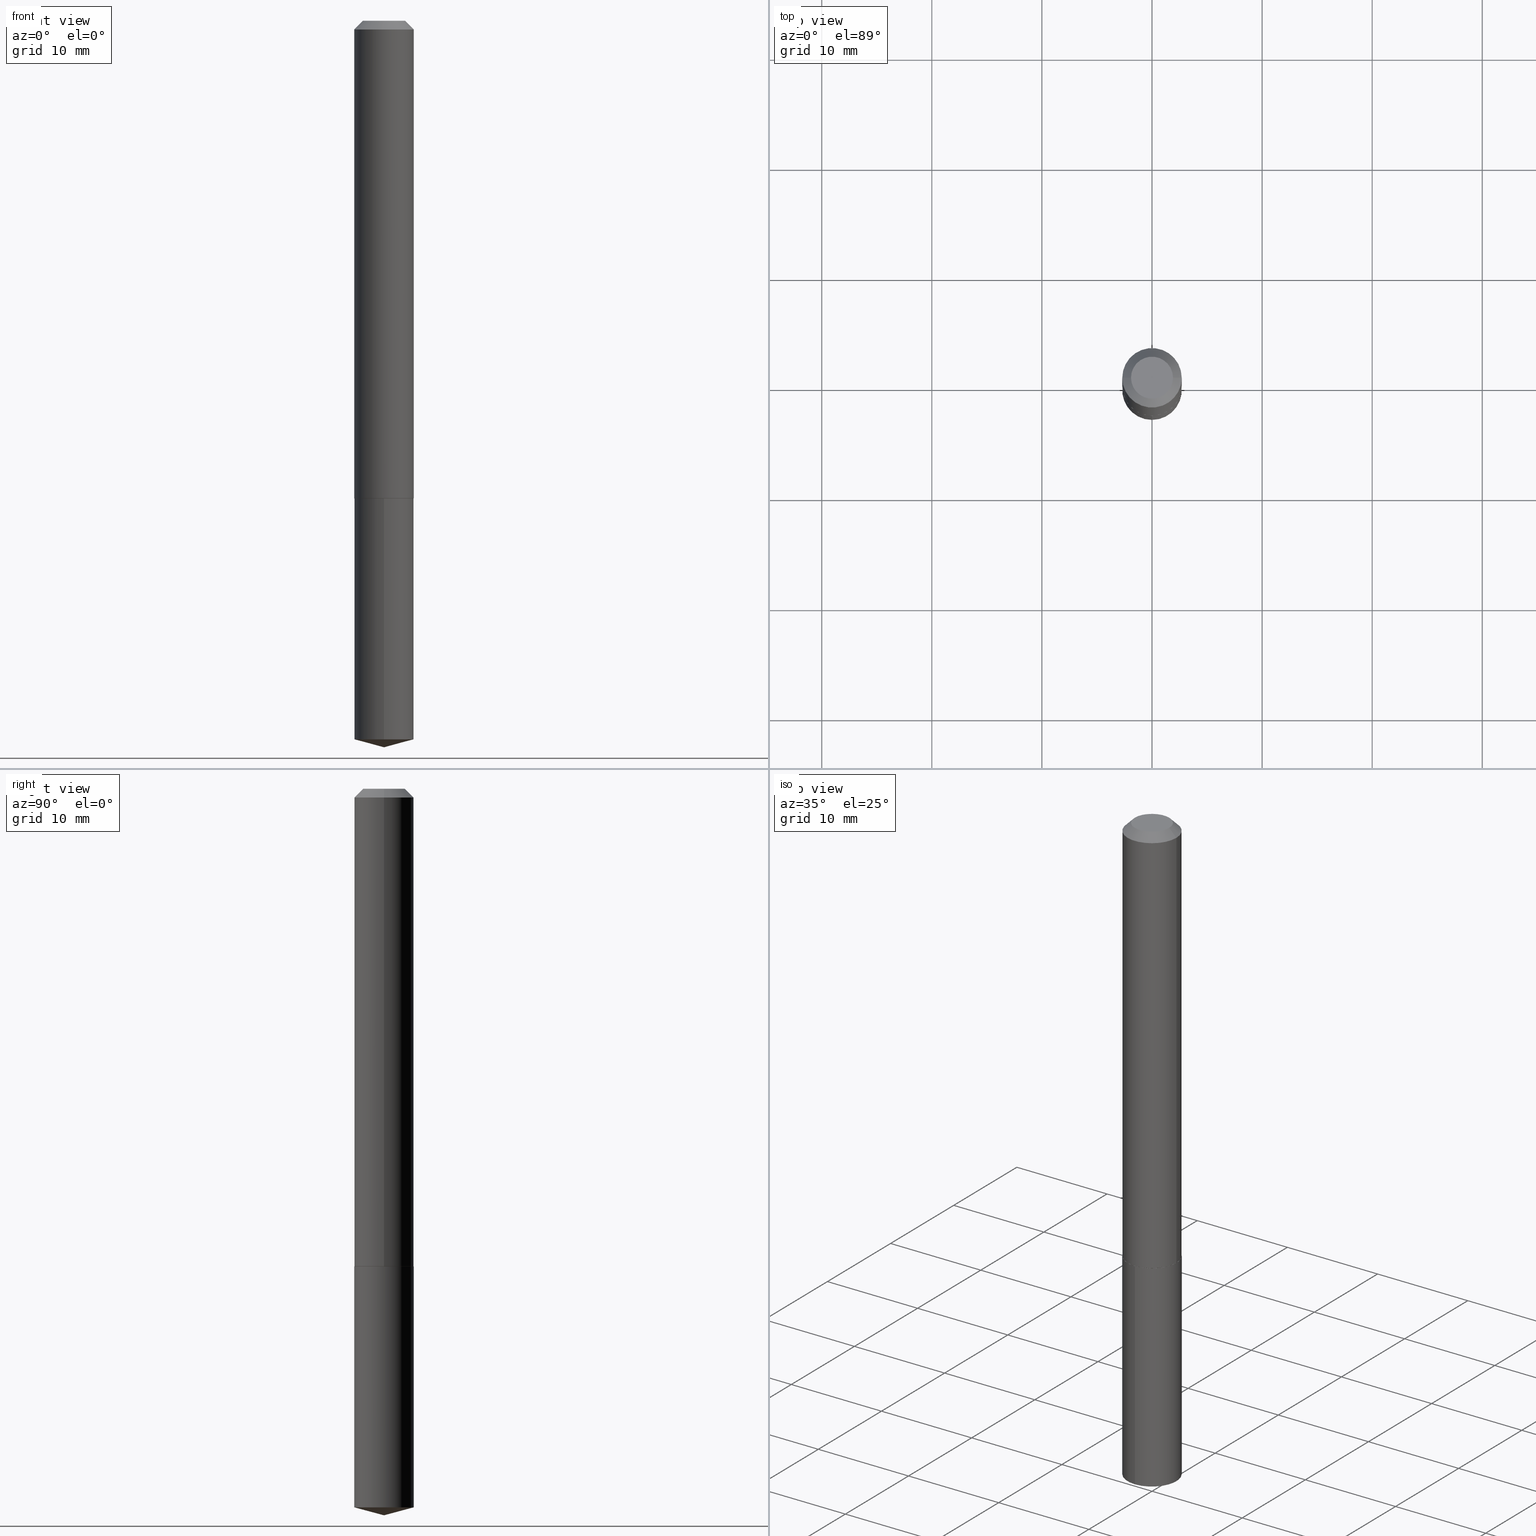
[diagram: canonical four-view strip — front | top / right | iso, engineering-drawing reading convention]
A machine part, canonical four-view strip (front | top / right | iso — engineering-drawing reading convention). The complete STEP part file that produces these views, byte-faithful:
ISO-10303-21;
HEADER;
FILE_DESCRIPTION (( 'STEP AP203' ),
    '1' );
FILE_NAME ('63059.STEP',
    '2024-04-23T09:01:29',
    ( '' ),
    ( '' ),
    'SwSTEP 2.0',
    'SolidWorks 2023',
    '' );
FILE_SCHEMA (( 'CONFIG_CONTROL_DESIGN' ));
ENDSEC;

DATA;
#1 = DIRECTION ( 'NONE',  ( 1.000000000000000000, -6.982962677686265922E-15, 0.000000000000000000 ) ) ;
#2 = EDGE_CURVE ( 'NONE', #16, #351, #170, .T. ) ;
#3 = FACE_OUTER_BOUND ( 'NONE', #347, .T. ) ;
#4 = LOCAL_TIME ( 5, 1, 29.00000000000000000, #140 ) ;
#5 = DIRECTION ( 'NONE',  ( -6.982962677686265922E-15, -1.000000000000000000, 2.569941668545873170E-15 ) ) ;
#6 = CARTESIAN_POINT ( 'NONE',  ( 4.178328002247923804E-29, -5.965545015547398653E-15, -1.708599999999999897 ) ) ;
#7 = ORIENTED_EDGE ( 'NONE', *, *, #151, .F. ) ;
#8 = DIRECTION ( 'NONE',  ( -2.445479163494150825E-29, 3.491466506587135831E-15, 1.000000000000000000 ) ) ;
#9 = EDGE_LOOP ( 'NONE', ( #227, #366, #235, #73 ) ) ;
#10 = AXIS2_PLACEMENT_3D ( 'NONE', #200, #142, #106 ) ;
#11 = PERSON_AND_ORGANIZATION ( #259, #237 ) ;
#12 = ORIENTED_EDGE ( 'NONE', *, *, #359, .F. ) ;
#13 = ORIENTED_EDGE ( 'NONE', *, *, #359, .T. ) ;
#14 = APPROVAL ( #138, 'UNSPECIFIED' ) ;
#15 = PERSON_AND_ORGANIZATION_ROLE ( 'design_supplier' ) ;
#16 = VERTEX_POINT ( 'NONE', #117 ) ;
#17 = AXIS2_PLACEMENT_3D ( 'NONE', #357, #390, #269 ) ;
#18 = PERSON_AND_ORGANIZATION ( #259, #237 ) ;
#19 = VECTOR ( 'NONE', #370, 39.37007874015748143 ) ;
#20 = ORIENTED_EDGE ( 'NONE', *, *, #115, .T. ) ;
#21 = ORIENTED_EDGE ( 'NONE', *, *, #246, .F. ) ;
#22 = ADVANCED_FACE ( 'NONE', ( #239 ), #128, .T. ) ;
#23 = EDGE_CURVE ( 'NONE', #351, #16, #242, .T. ) ;
#24 = DIRECTION ( 'NONE',  ( -6.982962677686266711E-15, -1.000000000000000000, 3.510303681827621500E-15 ) ) ;
#25 = AXIS2_PLACEMENT_3D ( 'NONE', #271, #299, #245 ) ;
#26 = DIRECTION ( 'NONE',  ( 1.000000000000000000, -6.982962677686262766E-15, 0.000000000000000000 ) ) ;
#27 = VECTOR ( 'NONE', #307, 39.37007874015748143 ) ;
#28 = CARTESIAN_POINT ( 'NONE',  ( 0.1058000000000002688, -6.704342466846608152E-15, -1.708600000000000119 ) ) ;
#29 = APPROVAL_STATUS ( 'not_yet_approved' ) ;
#30 = DIRECTION ( 'NONE',  ( -2.445479163494150825E-29, 3.491466506587135831E-15, 1.000000000000000000 ) ) ;
#31 = CARTESIAN_POINT ( 'NONE',  ( -8.992439186225414658E-28, 1.283870593698494729E-13, 36.77167874015748339 ) ) ;
#32 = CC_DESIGN_APPROVAL ( #291, ( #263 ) ) ;
#33 = DIRECTION ( 'NONE',  ( 6.863315791527694259E-15, 0.9659258262890694224, 0.2588190451025160765 ) ) ;
#34 = FACE_OUTER_BOUND ( 'NONE', #344, .T. ) ;
#35 = FACE_OUTER_BOUND ( 'NONE', #169, .T. ) ;
#36 = CARTESIAN_POINT ( 'NONE',  ( 4.178328002247923804E-29, -5.965545015547398653E-15, -1.708599999999999897 ) ) ;
#37 = EDGE_CURVE ( 'NONE', #266, #174, #183, .T. ) ;
#38 = CARTESIAN_POINT ( 'NONE',  ( 7.553069281130489560E-16, 0.1062999999999909850, -2.569917000844572197 ) ) ;
#39 =( NAMED_UNIT ( * ) SI_UNIT ( $, .STERADIAN. ) SOLID_ANGLE_UNIT ( ) );
#40 = ORIENTED_EDGE ( 'NONE', *, *, #246, .T. ) ;
#41 = CONICAL_SURFACE ( 'NONE', #368, 0.1063000000000002415, 0.7853981633972434429 ) ;
#42 = AXIS2_PLACEMENT_3D ( 'NONE', #130, #281, #5 ) ;
#43 = AXIS2_PLACEMENT_3D ( 'NONE', #280, #367, #134 ) ;
#44 = DATE_AND_TIME ( #113, #4 ) ;
#45 = DIMENSIONAL_EXPONENTS ( 1.000000000000000000, 0.000000000000000000, 0.000000000000000000, 0.000000000000000000, 0.000000000000000000, 0.000000000000000000, 0.000000000000000000 ) ;
#46 = ORIENTED_EDGE ( 'NONE', *, *, #319, .F. ) ;
#47 = COORDINATED_UNIVERSAL_TIME_OFFSET ( 5, 0, .BEHIND. ) ;
#48 = EDGE_LOOP ( 'NONE', ( #228, #310, #13, #316 ) ) ;
#49 = PERSON_AND_ORGANIZATION ( #259, #237 ) ;
#50 = VERTEX_POINT ( 'NONE', #125 ) ;
#51 = CLOSED_SHELL ( 'NONE', ( #213, #272, #59, #103, #342 ) ) ;
#52 =( LENGTH_UNIT ( ) NAMED_UNIT ( * ) SI_UNIT ( $, .METRE. ) );
#53 = AXIS2_PLACEMENT_3D ( 'NONE', #214, #155, #387 ) ;
#54 = EDGE_LOOP ( 'NONE', ( #141, #118, #375, #374 ) ) ;
#55 = CARTESIAN_POINT ( 'NONE',  ( 0.000000000000000000, 0.000000000000000000, 0.000000000000000000 ) ) ;
#56 = CARTESIAN_POINT ( 'NONE',  ( 7.642090019328599159E-31, -1.091087918388489774E-16, -0.03125000000000019429 ) ) ;
#57 = CARTESIAN_POINT ( 'NONE',  ( 6.284660780976598715E-29, -8.972804475550304007E-15, -2.569917000844571753 ) ) ;
#58 = AXIS2_PLACEMENT_3D ( 'NONE', #6, #8, #253 ) ;
#59 = ADVANCED_FACE ( 'NONE', ( #323 ), #64, .T. ) ;
#60 = LINE ( 'NONE', #185, #377 ) ;
#61 = APPLICATION_CONTEXT ( 'configuration controlled 3d designs of mechanical parts and assemblies' ) ;
#62 = DIRECTION ( 'NONE',  ( 1.000000000000000000, -6.982962677686267499E-15, 0.000000000000000000 ) ) ;
#63 = CARTESIAN_POINT ( 'NONE',  ( 0.1063000000000002415, -6.706088207516028077E-15, -1.708099999999999952 ) ) ;
#64 = CONICAL_SURFACE ( 'NONE', #282, 146.9311341562558084, 1.308996938995748538 ) ;
#65 = AXIS2_PLACEMENT_3D ( 'NONE', #100, #304, #163 ) ;
#66 = CARTESIAN_POINT ( 'NONE',  ( 7.553069281130281498E-16, 0.1062999999999940520, -1.708600000000000119 ) ) ;
#67 = DIRECTION ( 'NONE',  ( 0.7071067811864026886, -2.468850131080739687E-15, 0.7071067811866923458 ) ) ;
#68 = FACE_OUTER_BOUND ( 'NONE', #177, .T. ) ;
#69 = LOCAL_TIME ( 5, 1, 29.00000000000000000, #175 ) ;
#70 = PLANE ( 'NONE',  #43 ) ;
#71 = ADVANCED_FACE ( 'NONE', ( #88 ), #41, .T. ) ;
#72 =( NAMED_UNIT ( * ) PLANE_ANGLE_UNIT ( ) SI_UNIT ( $, .RADIAN. ) );
#73 = ORIENTED_EDGE ( 'NONE', *, *, #89, .F. ) ;
#74 = AXIS2_PLACEMENT_3D ( 'NONE', #152, #184, #26 ) ;
#75 = LOCAL_TIME ( 5, 1, 29.00000000000000000, #47 ) ;
#76 = EDGE_LOOP ( 'NONE', ( #149, #114, #79, #143 ) ) ;
#77 = PRODUCT ( '63059', '63059', '', ( #315 ) ) ;
#78 = PERSON_AND_ORGANIZATION ( #259, #237 ) ;
#79 = ORIENTED_EDGE ( 'NONE', *, *, #371, .F. ) ;
#80 = DATE_AND_TIME ( #350, #224 ) ;
#81 = ORIENTED_EDGE ( 'NONE', *, *, #189, .F. ) ;
#82 = ADVANCED_FACE ( 'NONE', ( #295 ), #229, .T. ) ;
#83 = AXIS2_PLACEMENT_3D ( 'NONE', #57, #274, #95 ) ;
#84 = VECTOR ( 'NONE', #191, 39.37007874015748854 ) ;
#85 = ORIENTED_EDGE ( 'NONE', *, *, #270, .F. ) ;
#86 = DIRECTION ( 'NONE',  ( -2.445468806185136597E-29, 3.491481338843145583E-15, 1.000000000000000000 ) ) ;
#87 = CC_DESIGN_DATE_AND_TIME_ASSIGNMENT ( #171, #317, ( #258 ) ) ;
#88 = FACE_OUTER_BOUND ( 'NONE', #318, .T. ) ;
#89 = EDGE_CURVE ( 'NONE', #174, #314, #249, .T. ) ;
#90 = APPROVAL_DATE_TIME ( #326, #291 ) ;
#91 = AXIS2_PLACEMENT_3D ( 'NONE', #55, #86, #294 ) ;
#92 = DIRECTION ( 'NONE',  ( -0.7071067811865453523, 2.468850131082234184E-15, -0.7071067811865496822 ) ) ;
#93 = AXIS2_PLACEMENT_3D ( 'NONE', #220, #216, #188 ) ;
#94 = CARTESIAN_POINT ( 'NONE',  ( 4.178328002247923804E-29, -5.965545015547398653E-15, -1.708599999999999897 ) ) ;
#95 = DIRECTION ( 'NONE',  ( -6.982962677686265922E-15, -1.000000000000000000, 5.139883337091746339E-15 ) ) ;
#96 = EDGE_CURVE ( 'NONE', #174, #351, #267, .T. ) ;
#97 = CARTESIAN_POINT ( 'NONE',  ( -5.839929314523221596E-48, 8.337871319499147471E-34, 2.388061258337352918E-19 ) ) ;
#98 = AXIS2_PLACEMENT_3D ( 'NONE', #97, #218, #334 ) ;
#99 = ADVANCED_BREP_SHAPE_REPRESENTATION ( '63059', ( #308, #202, #10 ), #306 ) ;
#100 = CARTESIAN_POINT ( 'NONE',  ( 4.178328002247923804E-29, -5.965545015547398653E-15, -1.708599999999999897 ) ) ;
#101 = ADVANCED_FACE ( 'NONE', ( #327 ), #154, .T. ) ;
#102 = DIRECTION ( 'NONE',  ( -6.982962677686266711E-15, -1.000000000000000000, 3.510303681827621500E-15 ) ) ;
#103 = ADVANCED_FACE ( 'NONE', ( #383 ), #329, .T. ) ;
#104 = CARTESIAN_POINT ( 'NONE',  ( 6.354333058423199461E-29, -9.072226570716013671E-15, -2.598399999999999821 ) ) ;
#105 = CONICAL_SURFACE ( 'NONE', #93, 0.1063000000000000056, 0.7853981633974452814 ) ;
#106 = DIRECTION ( 'NONE',  ( 1.000000000000000000, 0.000000000000000000, 0.000000000000000000 ) ) ;
#107 = ORIENTED_EDGE ( 'NONE', *, *, #176, .T. ) ;
#108 = PERSON_AND_ORGANIZATION ( #259, #237 ) ;
#109 = ORIENTED_EDGE ( 'NONE', *, *, #110, .F. ) ;
#110 = EDGE_CURVE ( 'NONE', #293, #203, #206, .T. ) ;
#111 = ORIENTED_EDGE ( 'NONE', *, *, #23, .T. ) ;
#112 = AXIS2_PLACEMENT_3D ( 'NONE', #247, #277, #363 ) ;
#113 = CALENDAR_DATE ( 2024, 23, 4 ) ;
#114 = ORIENTED_EDGE ( 'NONE', *, *, #241, .T. ) ;
#115 = EDGE_CURVE ( 'NONE', #50, #351, #120, .T. ) ;
#116 = PERSON_AND_ORGANIZATION_ROLE ( 'creator' ) ;
#117 = CARTESIAN_POINT ( 'NONE',  ( 0.1063000000000000056, -8.513977244768991407E-16, -0.03125000000000019429 ) ) ;
#118 = ORIENTED_EDGE ( 'NONE', *, *, #181, .T. ) ;
#119 = CIRCLE ( 'NONE', #53, 0.07505000000000000560 ) ;
#120 = LINE ( 'NONE', #331, #136 ) ;
#121 = APPROVAL_ROLE ( '' ) ;
#122 = DIRECTION ( 'NONE',  ( -1.000000000000000000, 6.982962677686267499E-15, 0.000000000000000000 ) ) ;
#123 = EDGE_CURVE ( 'NONE', #203, #293, #322, .T. ) ;
#124 = CARTESIAN_POINT ( 'NONE',  ( 7.553069281130493504E-16, 0.1062999999999940243, -1.708600000000000119 ) ) ;
#125 = CARTESIAN_POINT ( 'NONE',  ( -0.07505000000000001947, 5.786257448797778683E-16, 2.388061258298797245E-19 ) ) ;
#126 = VECTOR ( 'NONE', #67, 39.37007874015748143 ) ;
#127 = ADVANCED_FACE ( 'NONE', ( #324 ), #164, .T. ) ;
#128 = CYLINDRICAL_SURFACE ( 'NONE', #91, 0.1063000000000001166 ) ;
#129 = CYLINDRICAL_SURFACE ( 'NONE', #42, 0.1063000000000000056 ) ;
#130 = CARTESIAN_POINT ( 'NONE',  ( 4.178328002247923804E-29, -5.965545015547398653E-15, -1.708599999999999897 ) ) ;
#131 = CIRCLE ( 'NONE', #268, 0.1063000000000000056 ) ;
#132 = PLANE ( 'NONE',  #112 ) ;
#133 = APPLICATION_CONTEXT ( 'configuration controlled 3d designs of mechanical parts and assemblies' ) ;
#134 = DIRECTION ( 'NONE',  ( 1.000000000000000000, -6.982962677686265922E-15, 4.876176775795935793E-29 ) ) ;
#135 = CARTESIAN_POINT ( 'NONE',  ( 0.1063000000000002415, -6.706088207516028077E-15, -1.708099999999999952 ) ) ;
#136 = VECTOR ( 'NONE', #92, 39.37007874015748143 ) ;
#137 = CIRCLE ( 'NONE', #98, 0.07505000000000000560 ) ;
#138 = APPROVAL_STATUS ( 'not_yet_approved' ) ;
#139 = EDGE_LOOP ( 'NONE', ( #285, #264, #107, #262 ) ) ;
#140 = COORDINATED_UNIVERSAL_TIME_OFFSET ( 5, 0, .BEHIND. ) ;
#141 = ORIENTED_EDGE ( 'NONE', *, *, #341, .F. ) ;
#142 = DIRECTION ( 'NONE',  ( 0.000000000000000000, 0.000000000000000000, 1.000000000000000000 ) ) ;
#143 = ORIENTED_EDGE ( 'NONE', *, *, #176, .F. ) ;
#144 = CC_DESIGN_PERSON_AND_ORGANIZATION_ASSIGNMENT ( #78, #197, ( #77 ) ) ;
#145 = CC_DESIGN_APPROVAL ( #14, ( #328 ) ) ;
#146 = APPROVAL_ROLE ( '' ) ;
#147 = VERTEX_POINT ( 'NONE', #28 ) ;
#148 = DIRECTION ( 'NONE',  ( -6.982962677686265922E-15, -1.000000000000000000, 2.569941668545873170E-15 ) ) ;
#149 = ORIENTED_EDGE ( 'NONE', *, *, #110, .T. ) ;
#150 = DATE_AND_TIME ( #157, #69 ) ;
#151 = EDGE_CURVE ( 'NONE', #50, #372, #119, .T. ) ;
#152 = CARTESIAN_POINT ( 'NONE',  ( 4.177105267844832123E-29, -5.963799274877977150E-15, -1.708099999999999952 ) ) ;
#153 = APPROVAL_PERSON_ORGANIZATION ( #18, #275, #146 ) ;
#154 = CYLINDRICAL_SURFACE ( 'NONE', #17, 0.1063000000000001166 ) ;
#155 = DIRECTION ( 'NONE',  ( -2.445468806185136597E-29, 3.491481338843145583E-15, 1.000000000000000000 ) ) ;
#156 = LINE ( 'NONE', #273, #19 ) ;
#157 = CALENDAR_DATE ( 2024, 23, 4 ) ;
#158 = AXIS2_PLACEMENT_3D ( 'NONE', #287, #380, #382 ) ;
#159 = CARTESIAN_POINT ( 'NONE',  ( -0.1063000000000001166, 7.553069281129873262E-16, -5.228828000940970663E-30 ) ) ;
#160 = VECTOR ( 'NONE', #276, 39.37007874015748143 ) ;
#161 = CARTESIAN_POINT ( 'NONE',  ( 4.178328002247924925E-29, -5.965545015547399442E-15, -1.708600000000000119 ) ) ;
#162 = FACE_OUTER_BOUND ( 'NONE', #76, .T. ) ;
#163 = DIRECTION ( 'NONE',  ( 6.982962677686265922E-15, 1.000000000000000000, -3.491466506587135831E-15 ) ) ;
#164 = CONICAL_SURFACE ( 'NONE', #296, 0.1063000000000000056, 0.7853981633974452814 ) ;
#165 = CARTESIAN_POINT ( 'NONE',  ( -8.992439186225414658E-28, 1.283870593698494729E-13, 36.77167874015748339 ) ) ;
#166 = FACE_OUTER_BOUND ( 'NONE', #54, .T. ) ;
#167 = VERTEX_POINT ( 'NONE', #124 ) ;
#168 = APPROVAL_STATUS ( 'not_yet_approved' ) ;
#169 = EDGE_LOOP ( 'NONE', ( #321, #312 ) ) ;
#170 = CIRCLE ( 'NONE', #158, 0.1063000000000000056 ) ;
#171 = DATE_AND_TIME ( #226, #75 ) ;
#172 = EDGE_LOOP ( 'NONE', ( #205, #40, #233 ) ) ;
#173 = APPROVAL_DATE_TIME ( #80, #14 ) ;
#174 = VERTEX_POINT ( 'NONE', #240 ) ;
#175 = COORDINATED_UNIVERSAL_TIME_OFFSET ( 5, 0, .BEHIND. ) ;
#176 = EDGE_CURVE ( 'NONE', #293, #234, #60, .T. ) ;
#177 = EDGE_LOOP ( 'NONE', ( #21, #201, #109 ) ) ;
#178 = LOCAL_TIME ( 5, 1, 29.00000000000000000, #211 ) ;
#179 = ORIENTED_EDGE ( 'NONE', *, *, #181, .F. ) ;
#180 = DIRECTION ( 'NONE',  ( -2.445479163494150825E-29, 3.491466506587135831E-15, 1.000000000000000000 ) ) ;
#181 = EDGE_CURVE ( 'NONE', #372, #16, #156, .T. ) ;
#182 = CALENDAR_DATE ( 2024, 23, 4 ) ;
#183 = LINE ( 'NONE', #210, #305 ) ;
#184 = DIRECTION ( 'NONE',  ( -2.445468806185136597E-29, 3.491481338843145583E-15, 1.000000000000000000 ) ) ;
#185 = CARTESIAN_POINT ( 'NONE',  ( -7.422889326380084277E-16, -0.1063000000000059592, -1.708599999999999675 ) ) ;
#186 = CARTESIAN_POINT ( 'NONE',  ( 4.177105267844832123E-29, -5.963799274877977150E-15, -1.708099999999999952 ) ) ;
#187 = DIRECTION ( 'NONE',  ( -2.445468806185136597E-29, 3.491481338843145583E-15, 1.000000000000000000 ) ) ;
#188 = DIRECTION ( 'NONE',  ( -1.000000000000000000, 6.982962677686267499E-15, 0.000000000000000000 ) ) ;
#189 = EDGE_CURVE ( 'NONE', #147, #314, #309, .T. ) ;
#190 = DIRECTION ( 'NONE',  ( 1.000000000000000000, -6.982962677686262766E-15, 0.000000000000000000 ) ) ;
#191 = DIRECTION ( 'NONE',  ( -6.745023994389839133E-15, -0.9659258262890676461, 0.2588190451025227934 ) ) ;
#192 = AXIS2_PLACEMENT_3D ( 'NONE', #238, #297, #355 ) ;
#193 = CARTESIAN_POINT ( 'NONE',  ( 6.354333368777999867E-29, -9.072226570716015249E-15, -2.598399999999999821 ) ) ;
#194 = ORIENTED_EDGE ( 'NONE', *, *, #2, .F. ) ;
#195 = ADVANCED_FACE ( 'NONE', ( #34 ), #70, .F. ) ;
#196 = APPLICATION_PROTOCOL_DEFINITION ( 'international standard', 'config_control_design', 1994, #133 ) ;
#197 = PERSON_AND_ORGANIZATION_ROLE ( 'design_owner' ) ;
#198 = ORIENTED_EDGE ( 'NONE', *, *, #270, .T. ) ;
#199 = CC_DESIGN_SECURITY_CLASSIFICATION ( #263, ( #328 ) ) ;
#200 = CARTESIAN_POINT ( 'NONE',  ( 0.000000000000000000, 0.000000000000000000, 0.000000000000000000 ) ) ;
#201 = ORIENTED_EDGE ( 'NONE', *, *, #313, .T. ) ;
#202 = MANIFOLD_SOLID_BREP ( 'Body-Move/Copy2[2]', #300 ) ;
#203 = VERTEX_POINT ( 'NONE', #38 ) ;
#204 =( CONVERSION_BASED_UNIT ( 'INCH', #225 ) LENGTH_UNIT ( ) NAMED_UNIT ( #45 ) );
#205 = ORIENTED_EDGE ( 'NONE', *, *, #313, .F. ) ;
#206 = CIRCLE ( 'NONE', #83, 0.1063000000000000056 ) ;
#207 = CC_DESIGN_APPROVAL ( #275, ( #258 ) ) ;
#208 = ORIENTED_EDGE ( 'NONE', *, *, #260, .T. ) ;
#209 = CC_DESIGN_DATE_AND_TIME_ASSIGNMENT ( #150, #353, ( #263 ) ) ;
#210 = CARTESIAN_POINT ( 'NONE',  ( -0.1063000000000002415, -5.208492346764989429E-15, -1.708099999999999952 ) ) ;
#211 = COORDINATED_UNIVERSAL_TIME_OFFSET ( 5, 0, .BEHIND. ) ;
#212 = DIRECTION ( 'NONE',  ( -2.445468806185136877E-29, 3.491481338843145188E-15, 1.000000000000000000 ) ) ;
#213 = ADVANCED_FACE ( 'NONE', ( #162 ), #129, .T. ) ;
#214 = CARTESIAN_POINT ( 'NONE',  ( -5.839929314523221596E-48, 8.337871319499147471E-34, 2.388061258337352918E-19 ) ) ;
#215 = DIRECTION ( 'NONE',  ( 1.000000000000000000, -6.982962677686262766E-15, 0.000000000000000000 ) ) ;
#216 = DIRECTION ( 'NONE',  ( 2.445468806185136597E-29, -3.491481338843145583E-15, -1.000000000000000000 ) ) ;
#217 = VECTOR ( 'NONE', #33, 39.37007874015748143 ) ;
#218 = DIRECTION ( 'NONE',  ( -2.445468806185136597E-29, 3.491481338843145583E-15, 1.000000000000000000 ) ) ;
#219 = CONICAL_SURFACE ( 'NONE', #369, 146.9311341562558084, 1.308996938995748538 ) ;
#220 = CARTESIAN_POINT ( 'NONE',  ( 7.642090019328599159E-31, -1.091087918388489774E-16, -0.03125000000000019429 ) ) ;
#221 = CARTESIAN_POINT ( 'NONE',  ( 6.354297665426837752E-29, -9.072277255501250575E-15, -2.598399999999999821 ) ) ;
#222 = CARTESIAN_POINT ( 'NONE',  ( 4.177105267844832123E-29, -5.963799274877977150E-15, -1.708099999999999952 ) ) ;
#223 = PRODUCT_RELATED_PRODUCT_CATEGORY ( 'detail', '', ( #77 ) ) ;
#224 = LOCAL_TIME ( 5, 1, 29.00000000000000000, #284 ) ;
#225 = LENGTH_MEASURE_WITH_UNIT ( LENGTH_MEASURE( 0.02539999999999999897 ), #52 );
#226 = CALENDAR_DATE ( 2024, 23, 4 ) ;
#227 = ORIENTED_EDGE ( 'NONE', *, *, #37, .F. ) ;
#228 = ORIENTED_EDGE ( 'NONE', *, *, #96, .F. ) ;
#229 = CONICAL_SURFACE ( 'NONE', #25, 0.1063000000000002415, 0.7853981633972434429 ) ;
#230 = CIRCLE ( 'NONE', #389, 0.1058000000000002688 ) ;
#231 = ADVANCED_FACE ( 'NONE', ( #166 ), #105, .T. ) ;
#232 = PERSON_AND_ORGANIZATION_ROLE ( 'classification_officer' ) ;
#233 = ORIENTED_EDGE ( 'NONE', *, *, #123, .F. ) ;
#234 = VERTEX_POINT ( 'NONE', #303 ) ;
#235 = ORIENTED_EDGE ( 'NONE', *, *, #189, .T. ) ;
#236 = CC_DESIGN_PERSON_AND_ORGANIZATION_ASSIGNMENT ( #11, #116, ( #258 ) ) ;
#237 = ORGANIZATION ( 'UNSPECIFIED', 'UNSPECIFIED', '' ) ;
#238 = CARTESIAN_POINT ( 'NONE',  ( 6.284660780976598715E-29, -8.972804475550304007E-15, -2.569917000844571753 ) ) ;
#239 = FACE_OUTER_BOUND ( 'NONE', #378, .T. ) ;
#240 = CARTESIAN_POINT ( 'NONE',  ( -0.1063000000000002415, -5.208492346764989429E-15, -1.708099999999999952 ) ) ;
#241 = EDGE_CURVE ( 'NONE', #203, #167, #336, .T. ) ;
#242 = CIRCLE ( 'NONE', #345, 0.1063000000000000056 ) ;
#243 = CIRCLE ( 'NONE', #301, 0.1058000000000002688 ) ;
#244 = DIRECTION ( 'NONE',  ( -2.445468806185136597E-29, 3.491481338843145583E-15, 1.000000000000000000 ) ) ;
#245 = DIRECTION ( 'NONE',  ( 1.000000000000000000, -6.982962677686262766E-15, 0.000000000000000000 ) ) ;
#246 = EDGE_CURVE ( 'NONE', #257, #293, #302, .T. ) ;
#247 = CARTESIAN_POINT ( 'NONE',  ( -2.919964657261610798E-48, 4.168935659749573735E-34, 1.194030629168676459E-19 ) ) ;
#248 = CC_DESIGN_PERSON_AND_ORGANIZATION_ASSIGNMENT ( #108, #232, ( #263 ) ) ;
#249 = CIRCLE ( 'NONE', #74, 0.1063000000000002415 ) ;
#250 = CIRCLE ( 'NONE', #333, 0.1063000000000002415 ) ;
#251 = DIRECTION ( 'NONE',  ( -2.445468806185136597E-29, 3.491481338843145583E-15, 1.000000000000000000 ) ) ;
#252 = LINE ( 'NONE', #337, #27 ) ;
#253 = DIRECTION ( 'NONE',  ( -6.982962677686265922E-15, -1.000000000000000000, 2.569941668545873170E-15 ) ) ;
#254 = CARTESIAN_POINT ( 'NONE',  ( -7.422889326379869312E-16, -0.1063000000000089568, -2.569917000844570865 ) ) ;
#255 = AXIS2_PLACEMENT_3D ( 'NONE', #94, #360, #362 ) ;
#256 = APPROVAL_ROLE ( '' ) ;
#257 = VERTEX_POINT ( 'NONE', #104 ) ;
#258 = PRODUCT_DEFINITION ( 'UNKNOWN', '', #328, #330 ) ;
#259 = PERSON ( 'UNSPECIFIED', 'UNSPECIFIED', 'UNSPECIFIED', ('UNSPECIFIED'), ('UNSPECIFIED'), ('UNSPECIFIED') ) ;
#260 = EDGE_CURVE ( 'NONE', #167, #234, #338, .T. ) ;
#261 = ORIENTED_EDGE ( 'NONE', *, *, #96, .T. ) ;
#262 = ORIENTED_EDGE ( 'NONE', *, *, #260, .F. ) ;
#263 = SECURITY_CLASSIFICATION ( '', '', #376 ) ;
#264 = ORIENTED_EDGE ( 'NONE', *, *, #123, .T. ) ;
#265 = CARTESIAN_POINT ( 'NONE',  ( 4.178328002247924925E-29, -5.965545015547399442E-15, -1.708600000000000119 ) ) ;
#266 = VERTEX_POINT ( 'NONE', #365 ) ;
#267 = LINE ( 'NONE', #159, #278 ) ;
#268 = AXIS2_PLACEMENT_3D ( 'NONE', #36, #343, #148 ) ;
#269 = DIRECTION ( 'NONE',  ( 1.000000000000000000, -6.982962677686266711E-15, 4.876176775795935793E-29 ) ) ;
#270 = EDGE_CURVE ( 'NONE', #314, #174, #250, .T. ) ;
#271 = CARTESIAN_POINT ( 'NONE',  ( 4.177105267844832123E-29, -5.963799274877977150E-15, -1.708099999999999952 ) ) ;
#272 = ADVANCED_FACE ( 'NONE', ( #68 ), #219, .T. ) ;
#273 = CARTESIAN_POINT ( 'NONE',  ( 0.1063000000000000056, -8.383797290019627421E-16, -0.03125000000000019429 ) ) ;
#274 = DIRECTION ( 'NONE',  ( -2.445479163494150825E-29, 3.491466506587135831E-15, 1.000000000000000000 ) ) ;
#275 = APPROVAL ( #168, 'UNSPECIFIED' ) ;
#276 = DIRECTION ( 'NONE',  ( -2.445479163494150825E-29, 3.491466506587135831E-15, 1.000000000000000000 ) ) ;
#277 = DIRECTION ( 'NONE',  ( 2.438088387897960049E-29, -3.491481338843145188E-15, -1.000000000000000000 ) ) ;
#278 = VECTOR ( 'NONE', #212, 39.37007874015748143 ) ;
#279 = CARTESIAN_POINT ( 'NONE',  ( -0.1063000000000000056, -2.281147105245424221E-15, -0.03125000000000019429 ) ) ;
#280 = CARTESIAN_POINT ( 'NONE',  ( 1.097616814755124764E-29, -1.037729877922863391E-14, -1.708599999999999897 ) ) ;
#281 = DIRECTION ( 'NONE',  ( -2.445479163494150825E-29, 3.491466506587135831E-15, 1.000000000000000000 ) ) ;
#282 = AXIS2_PLACEMENT_3D ( 'NONE', #31, #180, #24 ) ;
#283 = ORIENTED_EDGE ( 'NONE', *, *, #379, .F. ) ;
#284 = COORDINATED_UNIVERSAL_TIME_OFFSET ( 5, 0, .BEHIND. ) ;
#285 = ORIENTED_EDGE ( 'NONE', *, *, #241, .F. ) ;
#286 = PERSON_AND_ORGANIZATION_ROLE ( 'creator' ) ;
#287 = CARTESIAN_POINT ( 'NONE',  ( 7.642090019328599159E-31, -1.091087918388489774E-16, -0.03125000000000019429 ) ) ;
#288 = PERSON_AND_ORGANIZATION ( #259, #237 ) ;
#289 = ORIENTED_EDGE ( 'NONE', *, *, #371, .T. ) ;
#290 = APPROVAL_PERSON_ORGANIZATION ( #381, #291, #121 ) ;
#291 = APPROVAL ( #29, 'UNSPECIFIED' ) ;
#292 = APPLICATION_PROTOCOL_DEFINITION ( 'international standard', 'config_control_design', 1994, #61 ) ;
#293 = VERTEX_POINT ( 'NONE', #254 ) ;
#294 = DIRECTION ( 'NONE',  ( 1.000000000000000000, -6.982962677686266711E-15, 4.876176775795935793E-29 ) ) ;
#295 = FACE_OUTER_BOUND ( 'NONE', #9, .T. ) ;
#296 = AXIS2_PLACEMENT_3D ( 'NONE', #56, #386, #122 ) ;
#297 = DIRECTION ( 'NONE',  ( -2.445479163494150825E-29, 3.491466506587135831E-15, 1.000000000000000000 ) ) ;
#298 = DIRECTION ( 'NONE',  ( -2.445468806185136597E-29, 3.491481338843145583E-15, 1.000000000000000000 ) ) ;
#299 = DIRECTION ( 'NONE',  ( -2.445468806185136597E-29, 3.491481338843145583E-15, 1.000000000000000000 ) ) ;
#300 = CLOSED_SHELL ( 'NONE', ( #231, #22, #71, #195, #82, #101, #127, #325 ) ) ;
#301 = AXIS2_PLACEMENT_3D ( 'NONE', #265, #346, #311 ) ;
#302 = LINE ( 'NONE', #221, #84 ) ;
#303 = CARTESIAN_POINT ( 'NONE',  ( -7.422889326380084277E-16, -0.1063000000000059592, -1.708599999999999675 ) ) ;
#304 = DIRECTION ( 'NONE',  ( 2.445479163494150545E-29, -3.491466506587135831E-15, -1.000000000000000000 ) ) ;
#305 = VECTOR ( 'NONE', #388, 39.37007874015748143 ) ;
#306 =( GEOMETRIC_REPRESENTATION_CONTEXT ( 3 ) GLOBAL_UNCERTAINTY_ASSIGNED_CONTEXT ( ( #361 ) ) GLOBAL_UNIT_ASSIGNED_CONTEXT ( ( #204, #72, #39 ) ) REPRESENTATION_CONTEXT ( 'NONE', 'WORKASPACE' ) );
#307 = DIRECTION ( 'NONE',  ( -2.445468806185136877E-29, 3.491481338843145188E-15, 1.000000000000000000 ) ) ;
#308 = MANIFOLD_SOLID_BREP ( 'Body-Move/Copy2[1]', #51 ) ;
#309 = LINE ( 'NONE', #135, #126 ) ;
#310 = ORIENTED_EDGE ( 'NONE', *, *, #89, .T. ) ;
#311 = DIRECTION ( 'NONE',  ( 1.000000000000000000, -6.982962677686265922E-15, 0.000000000000000000 ) ) ;
#312 = ORIENTED_EDGE ( 'NONE', *, *, #341, .T. ) ;
#313 = EDGE_CURVE ( 'NONE', #257, #203, #332, .T. ) ;
#314 = VERTEX_POINT ( 'NONE', #63 ) ;
#315 = MECHANICAL_CONTEXT ( 'NONE', #61, 'mechanical' ) ;
#316 = ORIENTED_EDGE ( 'NONE', *, *, #23, .F. ) ;
#317 = DATE_TIME_ROLE ( 'creation_date' ) ;
#318 = EDGE_LOOP ( 'NONE', ( #349, #340, #85, #81 ) ) ;
#319 = EDGE_CURVE ( 'NONE', #147, #266, #230, .T. ) ;
#320 = APPROVAL_DATE_TIME ( #44, #275 ) ;
#321 = ORIENTED_EDGE ( 'NONE', *, *, #151, .T. ) ;
#322 = CIRCLE ( 'NONE', #192, 0.1063000000000000056 ) ;
#323 = FACE_OUTER_BOUND ( 'NONE', #172, .T. ) ;
#324 = FACE_OUTER_BOUND ( 'NONE', #352, .T. ) ;
#325 = ADVANCED_FACE ( 'NONE', ( #35 ), #132, .F. ) ;
#326 = DATE_AND_TIME ( #182, #178 ) ;
#327 = FACE_OUTER_BOUND ( 'NONE', #48, .T. ) ;
#328 = PRODUCT_DEFINITION_FORMATION_WITH_SPECIFIED_SOURCE ( 'ANY', '', #77, .NOT_KNOWN. ) ;
#329 = CYLINDRICAL_SURFACE ( 'NONE', #255, 0.1063000000000000056 ) ;
#330 = DESIGN_CONTEXT ( 'detailed design', #133, 'design' ) ;
#331 = CARTESIAN_POINT ( 'NONE',  ( -0.1063000000000000056, 6.331801407992013339E-16, -0.03125000000000019429 ) ) ;
#332 = LINE ( 'NONE', #193, #217 ) ;
#333 = AXIS2_PLACEMENT_3D ( 'NONE', #222, #187, #190 ) ;
#334 = DIRECTION ( 'NONE',  ( 1.000000000000000000, -6.982962677686265922E-15, 4.876182450887181548E-29 ) ) ;
#335 = CC_DESIGN_PERSON_AND_ORGANIZATION_ASSIGNMENT ( #373, #286, ( #328 ) ) ;
#336 = LINE ( 'NONE', #66, #160 ) ;
#337 = CARTESIAN_POINT ( 'NONE',  ( 0.1063000000000001166, -7.422889326380509276E-16, 5.183375912671085656E-30 ) ) ;
#338 = CIRCLE ( 'NONE', #58, 0.1063000000000000056 ) ;
#339 = DIRECTION ( 'NONE',  ( -2.445479163494150825E-29, 3.491466506587135831E-15, 1.000000000000000000 ) ) ;
#340 = ORIENTED_EDGE ( 'NONE', *, *, #37, .T. ) ;
#341 = EDGE_CURVE ( 'NONE', #372, #50, #137, .T. ) ;
#342 = ADVANCED_FACE ( 'NONE', ( #3 ), #364, .F. ) ;
#343 = DIRECTION ( 'NONE',  ( -2.445479163494150825E-29, 3.491466506587135831E-15, 1.000000000000000000 ) ) ;
#344 = EDGE_LOOP ( 'NONE', ( #46, #283 ) ) ;
#345 = AXIS2_PLACEMENT_3D ( 'NONE', #356, #244, #62 ) ;
#346 = DIRECTION ( 'NONE',  ( -2.445468806185136597E-29, 3.491481338843145583E-15, 1.000000000000000000 ) ) ;
#347 = EDGE_LOOP ( 'NONE', ( #289, #208 ) ) ;
#348 = CARTESIAN_POINT ( 'NONE',  ( 0.07505000000000001947, -6.766300518673582083E-16, 2.388061258379330487E-19 ) ) ;
#349 = ORIENTED_EDGE ( 'NONE', *, *, #319, .T. ) ;
#350 = CALENDAR_DATE ( 2024, 23, 4 ) ;
#351 = VERTEX_POINT ( 'NONE', #279 ) ;
#352 = EDGE_LOOP ( 'NONE', ( #179, #7, #20, #111 ) ) ;
#353 = DATE_TIME_ROLE ( 'classification_date' ) ;
#354 = PRODUCT_DEFINITION_SHAPE ( 'NONE', 'NONE',  #258 ) ;
#355 = DIRECTION ( 'NONE',  ( -6.982962677686265922E-15, -1.000000000000000000, 5.139883337091746339E-15 ) ) ;
#356 = CARTESIAN_POINT ( 'NONE',  ( 7.642090019328599159E-31, -1.091087918388489774E-16, -0.03125000000000019429 ) ) ;
#357 = CARTESIAN_POINT ( 'NONE',  ( 0.000000000000000000, 0.000000000000000000, 0.000000000000000000 ) ) ;
#358 = APPROVAL_PERSON_ORGANIZATION ( #288, #14, #256 ) ;
#359 = EDGE_CURVE ( 'NONE', #314, #16, #252, .T. ) ;
#360 = DIRECTION ( 'NONE',  ( -2.445479163494150825E-29, 3.491466506587135831E-15, 1.000000000000000000 ) ) ;
#361 = UNCERTAINTY_MEASURE_WITH_UNIT (LENGTH_MEASURE( 1.000000000000000082E-05 ), #204, 'distance_accuracy_value', 'NONE');
#362 = DIRECTION ( 'NONE',  ( -6.982962677686265922E-15, -1.000000000000000000, 2.569941668545873170E-15 ) ) ;
#363 = DIRECTION ( 'NONE',  ( -1.000000000000000000, 6.982962677686265922E-15, -4.876176775795935793E-29 ) ) ;
#364 = PLANE ( 'NONE',  #65 ) ;
#365 = CARTESIAN_POINT ( 'NONE',  ( -0.1058000000000002688, -5.211141573939100630E-15, -1.708600000000000119 ) ) ;
#366 = ORIENTED_EDGE ( 'NONE', *, *, #379, .T. ) ;
#367 = DIRECTION ( 'NONE',  ( -2.438088387897960049E-29, 3.491481338843145188E-15, 1.000000000000000000 ) ) ;
#368 = AXIS2_PLACEMENT_3D ( 'NONE', #186, #298, #215 ) ;
#369 = AXIS2_PLACEMENT_3D ( 'NONE', #165, #339, #102 ) ;
#370 = DIRECTION ( 'NONE',  ( 0.7071067811865453523, -7.319954787623248157E-15, -0.7071067811865496822 ) ) ;
#371 = EDGE_CURVE ( 'NONE', #234, #167, #131, .T. ) ;
#372 = VERTEX_POINT ( 'NONE', #348 ) ;
#373 = PERSON_AND_ORGANIZATION ( #259, #237 ) ;
#374 = ORIENTED_EDGE ( 'NONE', *, *, #115, .F. ) ;
#375 = ORIENTED_EDGE ( 'NONE', *, *, #2, .T. ) ;
#376 = SECURITY_CLASSIFICATION_LEVEL ( 'unclassified' ) ;
#377 = VECTOR ( 'NONE', #30, 39.37007874015748143 ) ;
#378 = EDGE_LOOP ( 'NONE', ( #198, #261, #194, #12 ) ) ;
#379 = EDGE_CURVE ( 'NONE', #266, #147, #243, .T. ) ;
#380 = DIRECTION ( 'NONE',  ( -2.445468806185136597E-29, 3.491481338843145583E-15, 1.000000000000000000 ) ) ;
#381 = PERSON_AND_ORGANIZATION ( #259, #237 ) ;
#382 = DIRECTION ( 'NONE',  ( 1.000000000000000000, -6.982962677686267499E-15, 0.000000000000000000 ) ) ;
#383 = FACE_OUTER_BOUND ( 'NONE', #139, .T. ) ;
#384 = CC_DESIGN_PERSON_AND_ORGANIZATION_ASSIGNMENT ( #49, #15, ( #328 ) ) ;
#385 = SHAPE_DEFINITION_REPRESENTATION ( #354, #99 ) ;
#386 = DIRECTION ( 'NONE',  ( 2.445468806185136597E-29, -3.491481338843145583E-15, -1.000000000000000000 ) ) ;
#387 = DIRECTION ( 'NONE',  ( 1.000000000000000000, -6.982962677686265922E-15, 4.876182450887181548E-29 ) ) ;
#388 = DIRECTION ( 'NONE',  ( -0.7071067811864026886, 7.493145998869830357E-15, 0.7071067811866923458 ) ) ;
#389 = AXIS2_PLACEMENT_3D ( 'NONE', #161, #251, #1 ) ;
#390 = DIRECTION ( 'NONE',  ( -2.445468806185136597E-29, 3.491481338843145583E-15, 1.000000000000000000 ) ) ;
ENDSEC;
END-ISO-10303-21;
